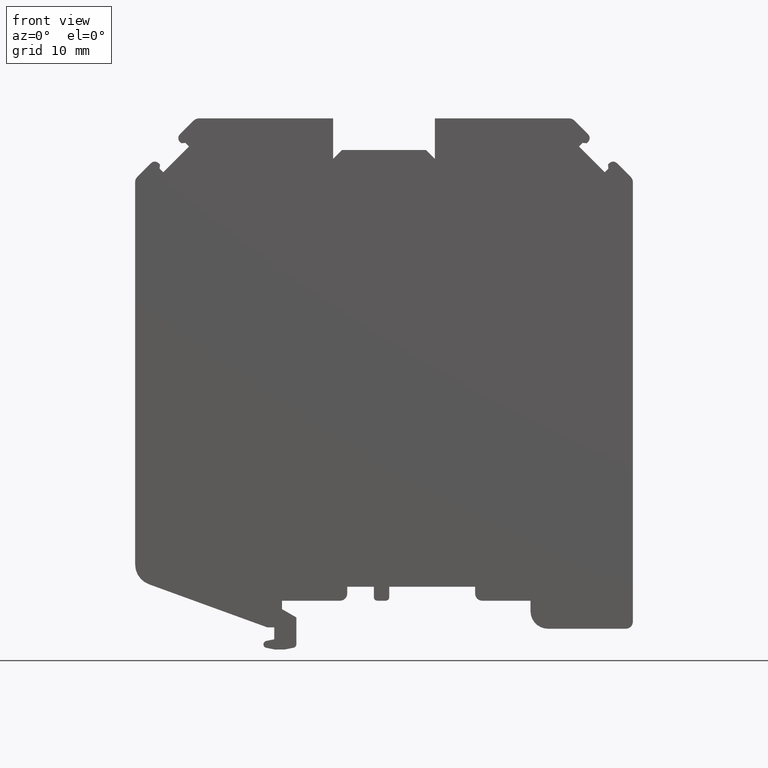
[diagram: clean part render]
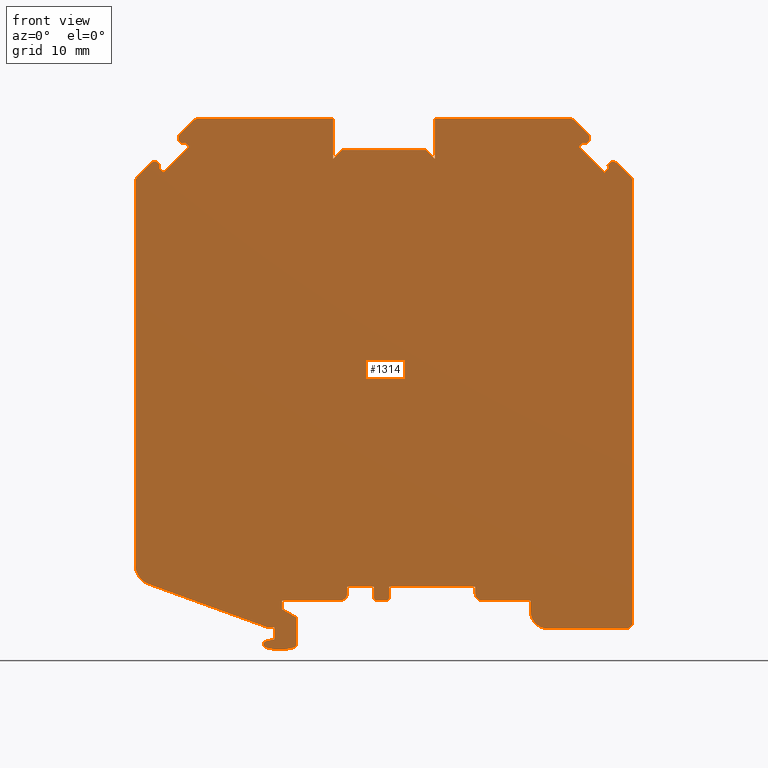
[diagram: same view with one face highlighted and labeled with its STEP entity id]
A machine part, front view. The second image highlights one B-rep face of the part: STEP entity #1314.
In plain terms, the highlighted planar face has unit normal (0, -1, 0).
Its self-contained STEP definition (entity closure, byte-faithful):
#20=CIRCLE('',#1330,0.75);
#22=CIRCLE('',#1340,0.75);
#24=CIRCLE('',#1344,1.);
#26=CIRCLE('',#1354,1.);
#28=CIRCLE('',#1358,0.75);
#30=CIRCLE('',#1368,0.75);
#32=CIRCLE('',#1372,1.);
#34=CIRCLE('',#1376,3.);
#36=CIRCLE('',#1383,0.499976171200046);
#38=CIRCLE('',#1386,6.81634180069329);
#40=CIRCLE('',#1389,0.499976171200046);
#42=CIRCLE('',#1396,0.999952342399979);
#44=CIRCLE('',#1402,0.499976171200046);
#46=CIRCLE('',#1406,0.499976171200046);
#48=CIRCLE('',#1412,0.999952342399979);
#50=CIRCLE('',#1417,2.499880856);
#52=CIRCLE('',#1421,1.);
#54=CIRCLE('',#1425,1.);
#389=ORIENTED_EDGE('',*,*,#452,.T.);
#390=ORIENTED_EDGE('',*,*,#456,.T.);
#391=ORIENTED_EDGE('',*,*,#459,.T.);
#392=ORIENTED_EDGE('',*,*,#462,.T.);
#393=ORIENTED_EDGE('',*,*,#465,.T.);
#394=ORIENTED_EDGE('',*,*,#468,.T.);
#395=ORIENTED_EDGE('',*,*,#471,.T.);
#396=ORIENTED_EDGE('',*,*,#474,.T.);
#397=ORIENTED_EDGE('',*,*,#477,.T.);
#398=ORIENTED_EDGE('',*,*,#480,.T.);
#399=ORIENTED_EDGE('',*,*,#483,.T.);
#400=ORIENTED_EDGE('',*,*,#486,.T.);
#401=ORIENTED_EDGE('',*,*,#489,.T.);
#402=ORIENTED_EDGE('',*,*,#492,.T.);
#403=ORIENTED_EDGE('',*,*,#495,.T.);
#404=ORIENTED_EDGE('',*,*,#498,.T.);
#405=ORIENTED_EDGE('',*,*,#501,.T.);
#406=ORIENTED_EDGE('',*,*,#504,.T.);
#407=ORIENTED_EDGE('',*,*,#507,.T.);
#408=ORIENTED_EDGE('',*,*,#510,.T.);
#409=ORIENTED_EDGE('',*,*,#513,.T.);
#410=ORIENTED_EDGE('',*,*,#516,.T.);
#411=ORIENTED_EDGE('',*,*,#519,.T.);
#412=ORIENTED_EDGE('',*,*,#522,.T.);
#413=ORIENTED_EDGE('',*,*,#525,.T.);
#414=ORIENTED_EDGE('',*,*,#528,.T.);
#415=ORIENTED_EDGE('',*,*,#531,.T.);
#416=ORIENTED_EDGE('',*,*,#534,.T.);
#417=ORIENTED_EDGE('',*,*,#537,.T.);
#418=ORIENTED_EDGE('',*,*,#540,.T.);
#419=ORIENTED_EDGE('',*,*,#543,.T.);
#420=ORIENTED_EDGE('',*,*,#546,.T.);
#421=ORIENTED_EDGE('',*,*,#549,.T.);
#422=ORIENTED_EDGE('',*,*,#552,.T.);
#423=ORIENTED_EDGE('',*,*,#555,.T.);
#424=ORIENTED_EDGE('',*,*,#558,.T.);
#425=ORIENTED_EDGE('',*,*,#561,.T.);
#426=ORIENTED_EDGE('',*,*,#564,.T.);
#427=ORIENTED_EDGE('',*,*,#567,.T.);
#428=ORIENTED_EDGE('',*,*,#570,.T.);
#429=ORIENTED_EDGE('',*,*,#573,.T.);
#430=ORIENTED_EDGE('',*,*,#576,.T.);
#431=ORIENTED_EDGE('',*,*,#579,.T.);
#432=ORIENTED_EDGE('',*,*,#582,.T.);
#433=ORIENTED_EDGE('',*,*,#585,.T.);
#434=ORIENTED_EDGE('',*,*,#588,.T.);
#435=ORIENTED_EDGE('',*,*,#591,.T.);
#436=ORIENTED_EDGE('',*,*,#594,.T.);
#437=ORIENTED_EDGE('',*,*,#597,.T.);
#438=ORIENTED_EDGE('',*,*,#600,.T.);
#439=ORIENTED_EDGE('',*,*,#603,.T.);
#440=ORIENTED_EDGE('',*,*,#606,.T.);
#441=ORIENTED_EDGE('',*,*,#609,.T.);
#442=ORIENTED_EDGE('',*,*,#612,.T.);
#443=ORIENTED_EDGE('',*,*,#615,.T.);
#444=ORIENTED_EDGE('',*,*,#618,.T.);
#445=ORIENTED_EDGE('',*,*,#621,.T.);
#446=ORIENTED_EDGE('',*,*,#624,.T.);
#447=ORIENTED_EDGE('',*,*,#627,.T.);
#448=ORIENTED_EDGE('',*,*,#630,.T.);
#449=ORIENTED_EDGE('',*,*,#633,.T.);
#450=ORIENTED_EDGE('',*,*,#636,.T.);
#451=ORIENTED_EDGE('',*,*,#639,.T.);
#452=EDGE_CURVE('',#641,#642,#767,.T.);
#456=EDGE_CURVE('',#642,#645,#20,.T.);
#459=EDGE_CURVE('',#645,#647,#772,.T.);
#462=EDGE_CURVE('',#647,#649,#775,.T.);
#465=EDGE_CURVE('',#649,#651,#778,.T.);
#468=EDGE_CURVE('',#651,#653,#781,.T.);
#471=EDGE_CURVE('',#653,#655,#784,.T.);
#474=EDGE_CURVE('',#655,#657,#787,.T.);
#477=EDGE_CURVE('',#657,#659,#790,.T.);
#480=EDGE_CURVE('',#659,#661,#22,.T.);
#483=EDGE_CURVE('',#661,#663,#794,.T.);
#486=EDGE_CURVE('',#663,#665,#24,.T.);
#489=EDGE_CURVE('',#665,#667,#798,.T.);
#492=EDGE_CURVE('',#667,#669,#801,.T.);
#495=EDGE_CURVE('',#669,#671,#804,.T.);
#498=EDGE_CURVE('',#671,#673,#807,.T.);
#501=EDGE_CURVE('',#673,#675,#810,.T.);
#504=EDGE_CURVE('',#675,#677,#813,.T.);
#507=EDGE_CURVE('',#677,#679,#816,.T.);
#510=EDGE_CURVE('',#679,#681,#26,.T.);
#513=EDGE_CURVE('',#681,#683,#820,.T.);
#516=EDGE_CURVE('',#683,#685,#28,.T.);
#519=EDGE_CURVE('',#685,#687,#824,.T.);
#522=EDGE_CURVE('',#687,#689,#827,.T.);
#525=EDGE_CURVE('',#689,#691,#830,.T.);
#528=EDGE_CURVE('',#691,#693,#833,.T.);
#531=EDGE_CURVE('',#693,#695,#836,.T.);
#534=EDGE_CURVE('',#695,#697,#839,.T.);
#537=EDGE_CURVE('',#697,#699,#842,.T.);
#540=EDGE_CURVE('',#699,#701,#30,.T.);
#543=EDGE_CURVE('',#701,#703,#846,.T.);
#546=EDGE_CURVE('',#703,#705,#32,.T.);
#549=EDGE_CURVE('',#705,#707,#850,.T.);
#552=EDGE_CURVE('',#707,#709,#34,.T.);
#555=EDGE_CURVE('',#709,#711,#854,.T.);
#558=EDGE_CURVE('',#711,#713,#857,.T.);
#561=EDGE_CURVE('',#713,#715,#860,.T.);
#564=EDGE_CURVE('',#715,#717,#863,.T.);
#567=EDGE_CURVE('',#717,#719,#36,.T.);
#570=EDGE_CURVE('',#719,#721,#38,.T.);
#573=EDGE_CURVE('',#721,#723,#40,.T.);
#576=EDGE_CURVE('',#723,#725,#869,.T.);
#579=EDGE_CURVE('',#725,#727,#872,.T.);
#582=EDGE_CURVE('',#727,#729,#875,.T.);
#585=EDGE_CURVE('',#729,#731,#878,.T.);
#588=EDGE_CURVE('',#731,#733,#42,.T.);
#591=EDGE_CURVE('',#733,#735,#882,.T.);
#594=EDGE_CURVE('',#735,#737,#885,.T.);
#597=EDGE_CURVE('',#737,#739,#888,.T.);
#600=EDGE_CURVE('',#739,#741,#44,.T.);
#603=EDGE_CURVE('',#741,#743,#892,.T.);
#606=EDGE_CURVE('',#743,#745,#46,.T.);
#609=EDGE_CURVE('',#745,#747,#896,.T.);
#612=EDGE_CURVE('',#747,#749,#899,.T.);
#615=EDGE_CURVE('',#749,#751,#902,.T.);
#618=EDGE_CURVE('',#751,#753,#48,.T.);
#621=EDGE_CURVE('',#753,#755,#906,.T.);
#624=EDGE_CURVE('',#755,#757,#909,.T.);
#627=EDGE_CURVE('',#757,#759,#50,.T.);
#630=EDGE_CURVE('',#759,#761,#913,.T.);
#633=EDGE_CURVE('',#761,#763,#52,.T.);
#636=EDGE_CURVE('',#763,#765,#917,.T.);
#639=EDGE_CURVE('',#765,#641,#54,.T.);
#641=VERTEX_POINT('',#1789);
#642=VERTEX_POINT('',#1790);
#645=VERTEX_POINT('',#1798);
#647=VERTEX_POINT('',#1804);
#649=VERTEX_POINT('',#1810);
#651=VERTEX_POINT('',#1816);
#653=VERTEX_POINT('',#1822);
#655=VERTEX_POINT('',#1828);
#657=VERTEX_POINT('',#1834);
#659=VERTEX_POINT('',#1840);
#661=VERTEX_POINT('',#1846);
#663=VERTEX_POINT('',#1852);
#665=VERTEX_POINT('',#1858);
#667=VERTEX_POINT('',#1864);
#669=VERTEX_POINT('',#1870);
#671=VERTEX_POINT('',#1876);
#673=VERTEX_POINT('',#1882);
#675=VERTEX_POINT('',#1888);
#677=VERTEX_POINT('',#1894);
#679=VERTEX_POINT('',#1900);
#681=VERTEX_POINT('',#1906);
#683=VERTEX_POINT('',#1912);
#685=VERTEX_POINT('',#1918);
#687=VERTEX_POINT('',#1924);
#689=VERTEX_POINT('',#1930);
#691=VERTEX_POINT('',#1936);
#693=VERTEX_POINT('',#1942);
#695=VERTEX_POINT('',#1948);
#697=VERTEX_POINT('',#1954);
#699=VERTEX_POINT('',#1960);
#701=VERTEX_POINT('',#1966);
#703=VERTEX_POINT('',#1972);
#705=VERTEX_POINT('',#1978);
#707=VERTEX_POINT('',#1984);
#709=VERTEX_POINT('',#1990);
#711=VERTEX_POINT('',#1996);
#713=VERTEX_POINT('',#2002);
#715=VERTEX_POINT('',#2008);
#717=VERTEX_POINT('',#2014);
#719=VERTEX_POINT('',#2020);
#721=VERTEX_POINT('',#2026);
#723=VERTEX_POINT('',#2032);
#725=VERTEX_POINT('',#2038);
#727=VERTEX_POINT('',#2044);
#729=VERTEX_POINT('',#2050);
#731=VERTEX_POINT('',#2056);
#733=VERTEX_POINT('',#2062);
#735=VERTEX_POINT('',#2068);
#737=VERTEX_POINT('',#2074);
#739=VERTEX_POINT('',#2080);
#741=VERTEX_POINT('',#2086);
#743=VERTEX_POINT('',#2092);
#745=VERTEX_POINT('',#2098);
#747=VERTEX_POINT('',#2104);
#749=VERTEX_POINT('',#2110);
#751=VERTEX_POINT('',#2116);
#753=VERTEX_POINT('',#2122);
#755=VERTEX_POINT('',#2128);
#757=VERTEX_POINT('',#2134);
#759=VERTEX_POINT('',#2140);
#761=VERTEX_POINT('',#2146);
#763=VERTEX_POINT('',#2152);
#765=VERTEX_POINT('',#2158);
#767=LINE('',#1788,#920);
#772=LINE('',#1803,#925);
#775=LINE('',#1809,#928);
#778=LINE('',#1815,#931);
#781=LINE('',#1821,#934);
#784=LINE('',#1827,#937);
#787=LINE('',#1833,#940);
#790=LINE('',#1839,#943);
#794=LINE('',#1851,#947);
#798=LINE('',#1863,#951);
#801=LINE('',#1869,#954);
#804=LINE('',#1875,#957);
#807=LINE('',#1881,#960);
#810=LINE('',#1887,#963);
#813=LINE('',#1893,#966);
#816=LINE('',#1899,#969);
#820=LINE('',#1911,#973);
#824=LINE('',#1923,#977);
#827=LINE('',#1929,#980);
#830=LINE('',#1935,#983);
#833=LINE('',#1941,#986);
#836=LINE('',#1947,#989);
#839=LINE('',#1953,#992);
#842=LINE('',#1959,#995);
#846=LINE('',#1971,#999);
#850=LINE('',#1983,#1003);
#854=LINE('',#1995,#1007);
#857=LINE('',#2001,#1010);
#860=LINE('',#2007,#1013);
#863=LINE('',#2013,#1016);
#869=LINE('',#2037,#1022);
#872=LINE('',#2043,#1025);
#875=LINE('',#2049,#1028);
#878=LINE('',#2055,#1031);
#882=LINE('',#2067,#1035);
#885=LINE('',#2073,#1038);
#888=LINE('',#2079,#1041);
#892=LINE('',#2091,#1045);
#896=LINE('',#2103,#1049);
#899=LINE('',#2109,#1052);
#902=LINE('',#2115,#1055);
#906=LINE('',#2127,#1059);
#909=LINE('',#2133,#1062);
#913=LINE('',#2145,#1066);
#917=LINE('',#2157,#1070);
#920=VECTOR('',#1433,1000.);
#925=VECTOR('',#1446,1000.);
#928=VECTOR('',#1451,1000.);
#931=VECTOR('',#1456,1000.);
#934=VECTOR('',#1461,1000.);
#937=VECTOR('',#1466,1000.);
#940=VECTOR('',#1471,1000.);
#943=VECTOR('',#1476,1000.);
#947=VECTOR('',#1488,1000.);
#951=VECTOR('',#1500,1000.);
#954=VECTOR('',#1505,1000.);
#957=VECTOR('',#1510,1000.);
#960=VECTOR('',#1515,1000.);
#963=VECTOR('',#1520,1000.);
#966=VECTOR('',#1525,1000.);
#969=VECTOR('',#1530,1000.);
#973=VECTOR('',#1542,1000.);
#977=VECTOR('',#1554,1000.);
#980=VECTOR('',#1559,1000.);
#983=VECTOR('',#1564,1000.);
#986=VECTOR('',#1569,1000.);
#989=VECTOR('',#1574,1000.);
#992=VECTOR('',#1579,1000.);
#995=VECTOR('',#1584,1000.);
#999=VECTOR('',#1596,1000.);
#1003=VECTOR('',#1608,1000.);
#1007=VECTOR('',#1620,1000.);
#1010=VECTOR('',#1625,1000.);
#1013=VECTOR('',#1630,1000.);
#1016=VECTOR('',#1635,1000.);
#1022=VECTOR('',#1661,1000.);
#1025=VECTOR('',#1666,1000.);
#1028=VECTOR('',#1671,1000.);
#1031=VECTOR('',#1676,1000.);
#1035=VECTOR('',#1688,1000.);
#1038=VECTOR('',#1693,1000.);
#1041=VECTOR('',#1698,1000.);
#1045=VECTOR('',#1710,1000.);
#1049=VECTOR('',#1722,1000.);
#1052=VECTOR('',#1727,1000.);
#1055=VECTOR('',#1732,1000.);
#1059=VECTOR('',#1744,1000.);
#1062=VECTOR('',#1749,1000.);
#1066=VECTOR('',#1761,1000.);
#1070=VECTOR('',#1773,1000.);
#1137=EDGE_LOOP('',(#389,#390,#391,#392,#393,#394,#395,#396,#397,#398,#399,
#400,#401,#402,#403,#404,#405,#406,#407,#408,#409,#410,#411,#412,#413,#414,
#415,#416,#417,#418,#419,#420,#421,#422,#423,#424,#425,#426,#427,#428,#429,
#430,#431,#432,#433,#434,#435,#436,#437,#438,#439,#440,#441,#442,#443,#444,
#445,#446,#447,#448,#449,#450,#451));
#1202=FACE_BOUND('',#1137,.T.);
#1249=PLANE('',#1428);
#1314=ADVANCED_FACE('',(#1202),#1249,.T.);
#1330=AXIS2_PLACEMENT_3D('',#1797,#1439,#1440);
#1340=AXIS2_PLACEMENT_3D('',#1845,#1481,#1482);
#1344=AXIS2_PLACEMENT_3D('',#1857,#1493,#1494);
#1354=AXIS2_PLACEMENT_3D('',#1905,#1535,#1536);
#1358=AXIS2_PLACEMENT_3D('',#1917,#1547,#1548);
#1368=AXIS2_PLACEMENT_3D('',#1965,#1589,#1590);
#1372=AXIS2_PLACEMENT_3D('',#1977,#1601,#1602);
#1376=AXIS2_PLACEMENT_3D('',#1989,#1613,#1614);
#1383=AXIS2_PLACEMENT_3D('',#2019,#1640,#1641);
#1386=AXIS2_PLACEMENT_3D('',#2025,#1647,#1648);
#1389=AXIS2_PLACEMENT_3D('',#2031,#1654,#1655);
#1396=AXIS2_PLACEMENT_3D('',#2061,#1681,#1682);
#1402=AXIS2_PLACEMENT_3D('',#2085,#1703,#1704);
#1406=AXIS2_PLACEMENT_3D('',#2097,#1715,#1716);
#1412=AXIS2_PLACEMENT_3D('',#2121,#1737,#1738);
#1417=AXIS2_PLACEMENT_3D('',#2139,#1754,#1755);
#1421=AXIS2_PLACEMENT_3D('',#2151,#1766,#1767);
#1425=AXIS2_PLACEMENT_3D('',#2163,#1778,#1779);
#1428=AXIS2_PLACEMENT_3D('',#2166,#1784,#1785);
#1433=DIRECTION('',(-0.707106781186654,0.,0.707106781186441));
#1439=DIRECTION('',(0.,-1.,0.));
#1440=DIRECTION('',(1.,0.,0.));
#1446=DIRECTION('',(-0.707106781185423,0.,-0.707106781187672));
#1451=DIRECTION('',(0.0840390031473985,0.,-0.996462465901246));
#1456=DIRECTION('',(-0.707106781186548,0.,-0.707106781186548));
#1461=DIRECTION('',(-0.707106781186585,0.,0.70710678118651));
#1466=DIRECTION('',(0.707106781186586,0.,0.707106781186509));
#1471=DIRECTION('',(0.996462465901167,0.,-0.0840390031483343));
#1476=DIRECTION('',(0.707106781187732,0.,0.707106781185363));
#1481=DIRECTION('',(0.,-1.,0.));
#1482=DIRECTION('',(-1.,0.,0.));
#1488=DIRECTION('',(-0.707106781186676,0.,0.707106781186419));
#1493=DIRECTION('',(0.,-1.,0.));
#1494=DIRECTION('',(1.,0.,0.));
#1500=DIRECTION('',(-1.,0.,-2.89334770882211E-15));
#1505=DIRECTION('',(0.,0.,-1.));
#1510=DIRECTION('',(-0.707106781186516,0.,0.707106781186579));
#1515=DIRECTION('',(-1.,0.,-9.25185853854296E-15));
#1520=DIRECTION('',(-0.707106781186422,0.,-0.707106781186673));
#1525=DIRECTION('',(0.,0.,1.));
#1530=DIRECTION('',(-1.,0.,0.));
#1535=DIRECTION('',(0.,-1.,0.));
#1536=DIRECTION('',(1.,0.,0.));
#1542=DIRECTION('',(-0.707106781186541,0.,-0.707106781186554));
#1547=DIRECTION('',(0.,-1.,0.));
#1548=DIRECTION('',(1.,0.,0.));
#1554=DIRECTION('',(0.707106781186356,0.,-0.707106781186739));
#1559=DIRECTION('',(0.996462465901177,0.,0.0840390031482103));
#1564=DIRECTION('',(0.7071067811867,0.,-0.707106781186395));
#1569=DIRECTION('',(-0.707106781186521,0.,-0.707106781186574));
#1574=DIRECTION('',(-0.707106781186205,0.,0.70710678118689));
#1579=DIRECTION('',(0.0840390031488959,0.,0.99646246590112));
#1584=DIRECTION('',(-0.707106781187385,0.,0.70710678118571));
#1589=DIRECTION('',(0.,-1.,0.));
#1590=DIRECTION('',(1.,0.,0.));
#1596=DIRECTION('',(-0.707106781186637,0.,-0.707106781186458));
#1601=DIRECTION('',(0.,-1.,0.));
#1602=DIRECTION('',(1.,0.,0.));
#1608=DIRECTION('',(3.38163161786973E-15,0.,-1.));
#1613=DIRECTION('',(0.,-1.,0.));
#1614=DIRECTION('',(1.,0.,0.));
#1620=DIRECTION('',(0.939692620785912,0.,-0.342020143325659));
#1625=DIRECTION('',(1.,0.,-4.44110375084762E-13));
#1630=DIRECTION('',(2.61241397108684E-13,0.,-1.));
#1635=DIRECTION('',(-0.978787873763801,0.,-0.204876299685779));
#1640=DIRECTION('',(0.,-1.,0.));
#1641=DIRECTION('',(1.,0.,0.));
#1647=DIRECTION('',(0.,-1.,0.));
#1648=DIRECTION('',(1.,0.,0.));
#1654=DIRECTION('',(0.,-1.,0.));
#1655=DIRECTION('',(-1.,0.,0.));
#1661=DIRECTION('',(-1.15903221866185E-13,0.,1.));
#1666=DIRECTION('',(-0.866025403784367,0.,0.500000000000124));
#1671=DIRECTION('',(3.70091979237302E-13,0.,1.));
#1676=DIRECTION('',(1.,0.,4.556478810639E-14));
#1681=DIRECTION('',(0.,-1.,0.));
#1682=DIRECTION('',(-1.,0.,0.));
#1688=DIRECTION('',(0.,0.,1.));
#1693=DIRECTION('',(1.,0.,0.));
#1698=DIRECTION('',(1.98924438840006E-13,0.,-1.));
#1703=DIRECTION('',(0.,-1.,0.));
#1704=DIRECTION('',(1.,0.,0.));
#1710=DIRECTION('',(1.,0.,2.94917045954725E-13));
#1715=DIRECTION('',(0.,-1.,0.));
#1716=DIRECTION('',(-1.,0.,0.));
#1722=DIRECTION('',(0.,0.,1.));
#1727=DIRECTION('',(1.,0.,0.));
#1732=DIRECTION('',(-1.76950227572874E-13,0.,-1.));
#1737=DIRECTION('',(0.,-1.,0.));
#1738=DIRECTION('',(1.,0.,0.));
#1744=DIRECTION('',(1.,0.,0.));
#1749=DIRECTION('',(-3.70091979237329E-14,0.,-1.));
#1754=DIRECTION('',(0.,-1.,0.));
#1755=DIRECTION('',(1.,0.,0.));
#1761=DIRECTION('',(1.,0.,-5.00017847146539E-15));
#1766=DIRECTION('',(0.,-1.,0.));
#1767=DIRECTION('',(-1.,0.,0.));
#1773=DIRECTION('',(2.19923211144751E-14,0.,1.));
#1778=DIRECTION('',(0.,-1.,0.));
#1779=DIRECTION('',(1.,0.,0.));
#1784=DIRECTION('',(0.,-1.,0.));
#1785=DIRECTION('',(0.,0.,-1.));
#1788=CARTESIAN_POINT('',(33.2259690585891,0.,31.5234959848507));
#1789=CARTESIAN_POINT('',(35.2078255674833,0.,29.5416394759568));
#1790=CARTESIAN_POINT('',(33.2259690585891,0.,31.5234959848507));
#1797=CARTESIAN_POINT('',(32.6956389726991,0.,30.9931658989609));
#1798=CARTESIAN_POINT('',(32.1653088868083,0.,31.5234959848499));
#1803=CARTESIAN_POINT('',(32.1653088868082,0.,31.5234959848501));
#1804=CARTESIAN_POINT('',(31.9602479202654,0.,31.3184350183066));
#1809=CARTESIAN_POINT('',(31.9602479202654,0.,31.3184350183066));
#1810=CARTESIAN_POINT('',(32.0097453949479,0.,30.7315363899218));
#1815=CARTESIAN_POINT('',(32.0097453949479,0.,30.7315363899218));
#1816=CARTESIAN_POINT('',(31.4935574446817,0.,30.2153484396556));
#1821=CARTESIAN_POINT('',(27.8166021825115,0.,33.8923037018255));
#1822=CARTESIAN_POINT('',(27.8166021825115,0.,33.8923037018255));
#1827=CARTESIAN_POINT('',(28.3327901327777,0.,34.4084916520916));
#1828=CARTESIAN_POINT('',(28.3327901327777,0.,34.4084916520916));
#1833=CARTESIAN_POINT('',(28.9196887611625,0.,34.3589941774086));
#1834=CARTESIAN_POINT('',(28.9196887611625,0.,34.3589941774086));
#1839=CARTESIAN_POINT('',(29.1247497277063,0.,34.5640551439517));
#1840=CARTESIAN_POINT('',(29.1247497277063,0.,34.5640551439517));
#1845=CARTESIAN_POINT('',(28.5944196418173,0.,35.0943852298425));
#1846=CARTESIAN_POINT('',(29.1247497277071,0.,35.6247153157325));
#1851=CARTESIAN_POINT('',(27.1428932188131,0.,37.6065718246264));
#1852=CARTESIAN_POINT('',(27.1428932188131,0.,37.6065718246264));
#1857=CARTESIAN_POINT('',(26.4357864376263,0.,36.8994650434401));
#1858=CARTESIAN_POINT('',(26.4357864376268,0.,37.8994650434401));
#1863=CARTESIAN_POINT('',(7.24999999999998,0.,37.8994650434401));
#1864=CARTESIAN_POINT('',(7.24999999999998,0.,37.8994650434401));
#1869=CARTESIAN_POINT('',(7.24999999999998,0.,37.8994650434401));
#1870=CARTESIAN_POINT('',(7.24999999999998,0.,32.1494650434398));
#1875=CARTESIAN_POINT('',(5.99999999999978,0.,33.3994650434401));
#1876=CARTESIAN_POINT('',(5.99999999999978,0.,33.3994650434401));
#1881=CARTESIAN_POINT('',(5.99999999999978,0.,33.3994650434401));
#1882=CARTESIAN_POINT('',(-6.00000000000023,0.,33.39946504344));
#1887=CARTESIAN_POINT('',(-6.00000000000023,0.,33.39946504344));
#1888=CARTESIAN_POINT('',(-7.24999999999998,0.,32.1494650434398));
#1893=CARTESIAN_POINT('',(-7.24999999999998,0.,37.8994650434401));
#1894=CARTESIAN_POINT('',(-7.24999999999998,0.,37.8994650434401));
#1899=CARTESIAN_POINT('',(-7.24999999999998,0.,37.8994650434401));
#1900=CARTESIAN_POINT('',(-26.4357864376268,0.,37.8994650434401));
#1905=CARTESIAN_POINT('',(-26.4357864376268,0.,36.8994650434401));
#1906=CARTESIAN_POINT('',(-27.1428932188133,0.,37.6065718246266));
#1911=CARTESIAN_POINT('',(-27.1428932188131,0.,37.6065718246265));
#1912=CARTESIAN_POINT('',(-29.1247497277069,0.,35.6247153157327));
#1917=CARTESIAN_POINT('',(-28.5944196418173,0.,35.0943852298425));
#1918=CARTESIAN_POINT('',(-29.1247497277072,0.,34.5640551439526));
#1923=CARTESIAN_POINT('',(-29.124749727707,0.,34.5640551439528));
#1924=CARTESIAN_POINT('',(-28.9196887611629,0.,34.3589941774087));
#1929=CARTESIAN_POINT('',(-28.9196887611629,0.,34.3589941774087));
#1930=CARTESIAN_POINT('',(-28.3327901327786,0.,34.4084916520916));
#1935=CARTESIAN_POINT('',(-28.3327901327786,0.,34.4084916520916));
#1936=CARTESIAN_POINT('',(-27.8166021825124,0.,33.8923037018257));
#1941=CARTESIAN_POINT('',(-27.8166021825124,0.,33.8923037018257));
#1942=CARTESIAN_POINT('',(-31.4935574446822,0.,30.2153484396556));
#1947=CARTESIAN_POINT('',(-32.0097453949479,0.,30.7315363899218));
#1948=CARTESIAN_POINT('',(-32.0097453949479,0.,30.7315363899218));
#1953=CARTESIAN_POINT('',(-31.9602479202645,0.,31.3184350183066));
#1954=CARTESIAN_POINT('',(-31.9602479202645,0.,31.3184350183066));
#1959=CARTESIAN_POINT('',(-32.1653088868094,0.,31.523495984851));
#1960=CARTESIAN_POINT('',(-32.1653088868094,0.,31.523495984851));
#1965=CARTESIAN_POINT('',(-32.6956389726991,0.,30.9931658989609));
#1966=CARTESIAN_POINT('',(-33.2259690585889,0.,31.523495984851));
#1971=CARTESIAN_POINT('',(-33.2259690585888,0.,31.5234959848509));
#1972=CARTESIAN_POINT('',(-35.2078255674834,0.,29.5416394759568));
#1977=CARTESIAN_POINT('',(-34.5007187862967,0.,28.8345326947704));
#1978=CARTESIAN_POINT('',(-35.5007187862967,0.,28.8345326947704));
#1983=CARTESIAN_POINT('',(-35.5007187862961,0.,7.09338104810725));
#1984=CARTESIAN_POINT('',(-35.500718786296,0.,-25.7376055903648));
#1989=CARTESIAN_POINT('',(-32.500718786296,0.,-25.7376055903648));
#1990=CARTESIAN_POINT('',(-33.526779216273,0.,-28.5566834527225));
#1995=CARTESIAN_POINT('',(-16.6492065009605,0.,-34.6996175477598));
#1996=CARTESIAN_POINT('',(-16.6492065009605,0.,-34.6996175477598));
#2001=CARTESIAN_POINT('',(-15.6492541585607,0.,-34.6996175477602));
#2002=CARTESIAN_POINT('',(-15.6492541585607,0.,-34.6996175477602));
#2007=CARTESIAN_POINT('',(-15.6492541585607,0.,-34.6996175477602));
#2008=CARTESIAN_POINT('',(-15.6492541585602,0.,-36.3995365298399));
#2013=CARTESIAN_POINT('',(-16.8016373859672,0.,-36.6407491743562));
#2014=CARTESIAN_POINT('',(-16.8016373859672,0.,-36.6407491743562));
#2019=CARTESIAN_POINT('',(-16.6992041180807,0.,-37.1301197878977));
#2020=CARTESIAN_POINT('',(-16.843656336409,0.,-37.6087738679888));
#2025=CARTESIAN_POINT('',(-14.8742910931996,0.,-31.0831232427468));
#2026=CARTESIAN_POINT('',(-12.8509706378495,0.,-37.5922468303614));
#2031=CARTESIAN_POINT('',(-12.9993804512001,0.,-37.114805002419));
#2032=CARTESIAN_POINT('',(-12.49940428,0.,-37.114805002419));
#2037=CARTESIAN_POINT('',(-12.4994042800011,0.,-33.283253103346));
#2038=CARTESIAN_POINT('',(-12.4994042800011,0.,-33.283253103346));
#2043=CARTESIAN_POINT('',(-14.5493065819204,0.,-32.09974145752));
#2044=CARTESIAN_POINT('',(-14.5493065819204,0.,-32.09974145752));
#2049=CARTESIAN_POINT('',(-14.54930658192,0.,-30.8997986466402));
#2050=CARTESIAN_POINT('',(-14.54930658192,0.,-30.8997986466402));
#2055=CARTESIAN_POINT('',(-6.24970213999987,0.,-30.8997986466398));
#2056=CARTESIAN_POINT('',(-6.24970213999987,0.,-30.8997986466398));
#2061=CARTESIAN_POINT('',(-6.24970214000031,0.,-29.8998463042399));
#2062=CARTESIAN_POINT('',(-5.24974979760033,0.,-29.8998463042399));
#2067=CARTESIAN_POINT('',(-5.24974979760007,0.,-29.8998463042399));
#2068=CARTESIAN_POINT('',(-5.24974979760007,0.,-28.8998939618403));
#2073=CARTESIAN_POINT('',(-5.24974979760007,0.,-28.8998939618403));
#2074=CARTESIAN_POINT('',(-1.44993089648082,0.,-28.8998939618403));
#2079=CARTESIAN_POINT('',(-1.44993089648052,0.,-30.3998224754403));
#2080=CARTESIAN_POINT('',(-1.44993089648052,0.,-30.3998224754403));
#2085=CARTESIAN_POINT('',(-0.949954725280477,0.,-30.3998224754403));
#2086=CARTESIAN_POINT('',(-0.949954725280478,0.,-30.8997986466404));
#2091=CARTESIAN_POINT('',(0.249988085599284,0.,-30.8997986466399));
#2092=CARTESIAN_POINT('',(0.249988085599284,0.,-30.8997986466399));
#2097=CARTESIAN_POINT('',(0.249988085599284,0.,-30.3998224754398));
#2098=CARTESIAN_POINT('',(0.749964256799331,0.,-30.3998224754398));
#2103=CARTESIAN_POINT('',(0.749964256799629,0.,-30.3998224754398));
#2104=CARTESIAN_POINT('',(0.749964256799629,0.,-28.8998939618403));
#2109=CARTESIAN_POINT('',(0.749964256799629,0.,-28.8998939618403));
#2110=CARTESIAN_POINT('',(12.9993804511992,0.,-28.8998939618403));
#2115=CARTESIAN_POINT('',(12.9993804511992,0.,-28.8998939618403));
#2116=CARTESIAN_POINT('',(12.999380451199,0.,-29.8998463042399));
#2121=CARTESIAN_POINT('',(13.999332793599,0.,-29.8998463042399));
#2122=CARTESIAN_POINT('',(13.999332793599,0.,-30.8997986466398));
#2127=CARTESIAN_POINT('',(13.999332793599,0.,-30.8997986466402));
#2128=CARTESIAN_POINT('',(20.8990039561598,0.,-30.8997986466402));
#2133=CARTESIAN_POINT('',(20.8990039561598,0.,-30.8997986466402));
#2134=CARTESIAN_POINT('',(20.8990039561598,0.,-32.3997271602398));
#2139=CARTESIAN_POINT('',(23.3988848121598,0.,-32.3997271602398));
#2140=CARTESIAN_POINT('',(23.3988848121598,0.,-34.8996080162398));
#2145=CARTESIAN_POINT('',(23.3988848121598,0.,-34.8996080162399));
#2146=CARTESIAN_POINT('',(34.5007187862958,0.,-34.89960801624));
#2151=CARTESIAN_POINT('',(34.5007187862958,0.,-33.89960801624));
#2152=CARTESIAN_POINT('',(35.5007187862958,0.,-33.89960801624));
#2157=CARTESIAN_POINT('',(35.5007187862967,0.,28.8345326947704));
#2158=CARTESIAN_POINT('',(35.5007187862967,0.,28.8345326947704));
#2163=CARTESIAN_POINT('',(34.5007187862967,0.,28.8345326947704));
#2166=CARTESIAN_POINT('',(32.6956389726991,0.,30.9931658989609));